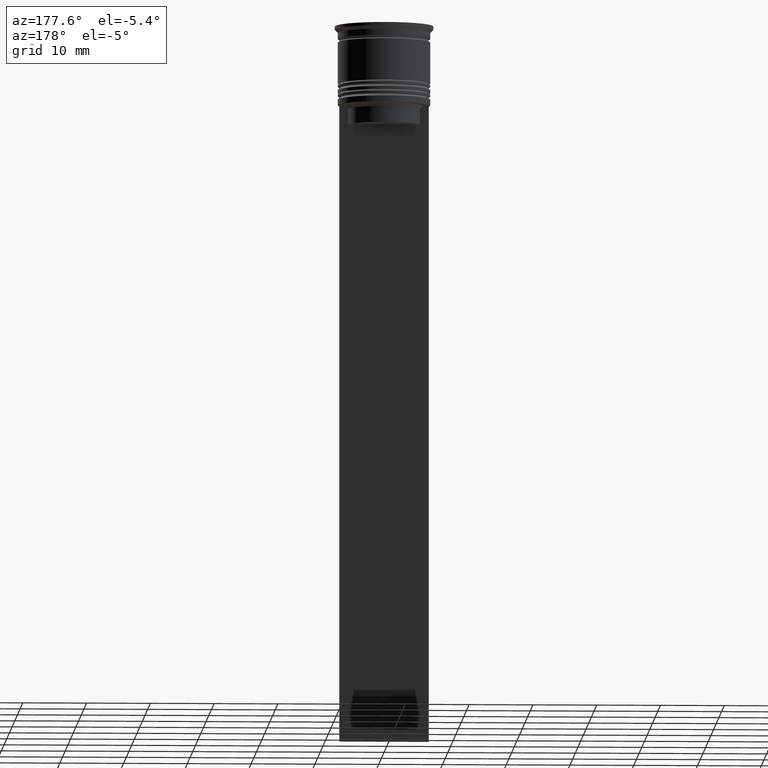
[diagram: clean part render]
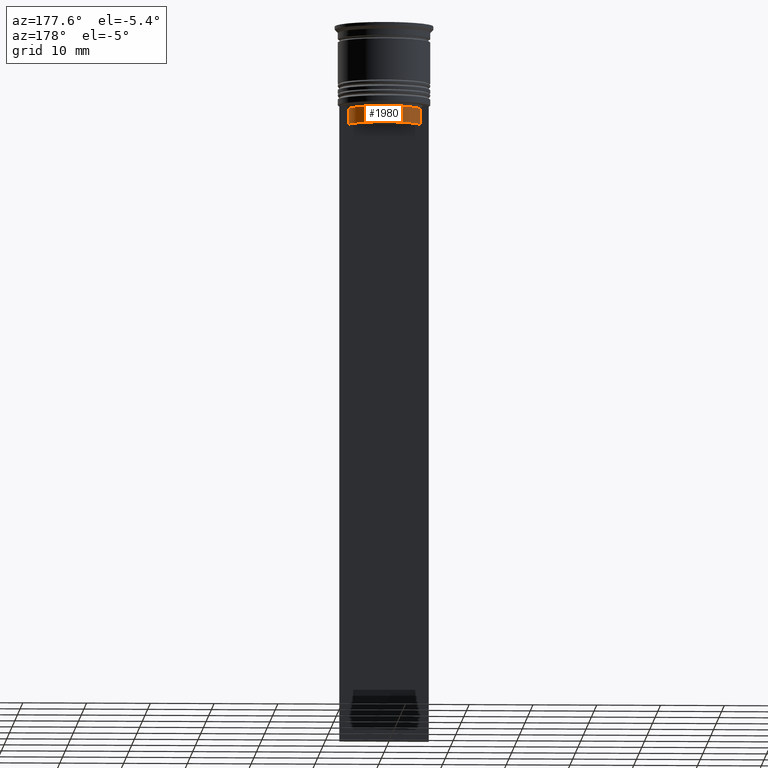
[diagram: same view with one face highlighted and labeled with its STEP entity id]
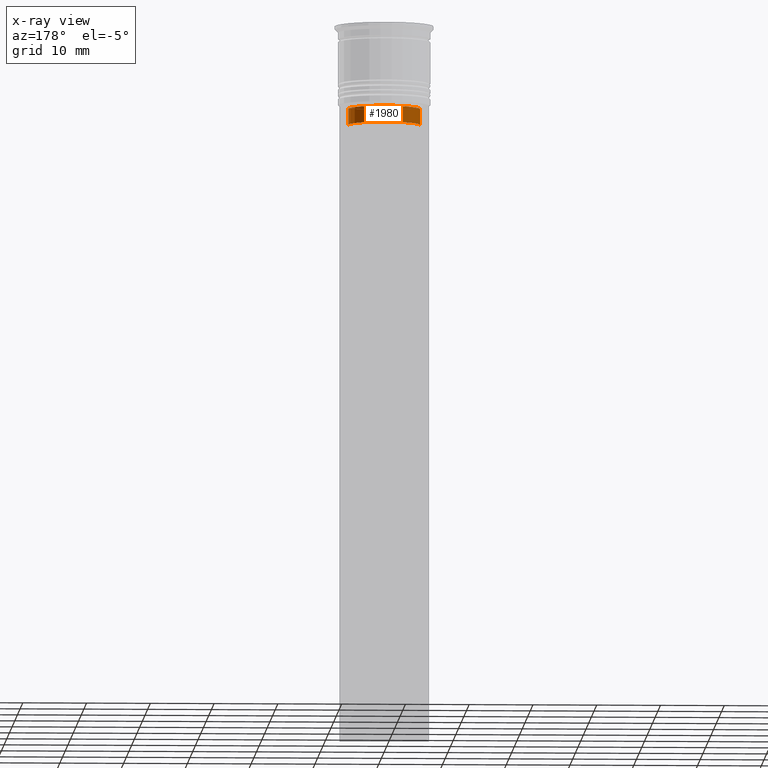
[diagram: x-ray of the same camera — body ghosted, the highlighted face saturated]
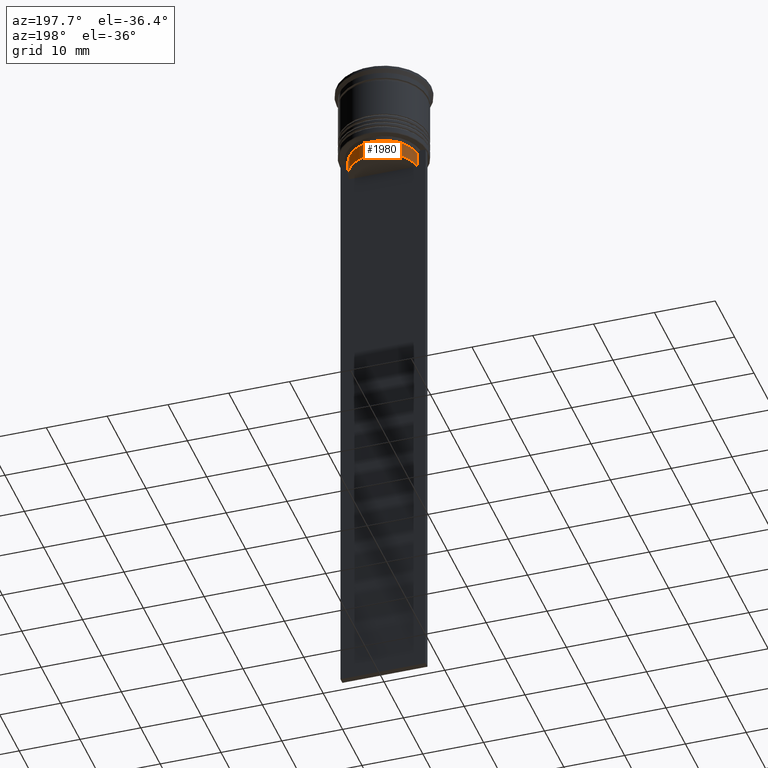
[diagram: same view with one face highlighted and labeled with its STEP entity id]
A machine part, auxiliary view. The second image highlights one B-rep face of the part: STEP entity #1980.
The next image is the same camera in x-ray: the body ghosted, the highlighted face saturated — about 0% of this face is hidden behind the body in this view.
A second angle (auxiliary view) of the same face is appended — the face is thin or edge-on in the first view.
In plain terms, the highlighted cylindrical surface (edge-blend (fillet) strip) has radius 5.65 mm, axis along (-0, -0, 1).
Its self-contained STEP definition (entity closure, byte-faithful):
#18 = EDGE_CURVE ( 'NONE', #59, #985, #1660, .T. ) ;
#59 = VERTEX_POINT ( 'NONE', #1250 ) ;
#175 = LINE ( 'NONE', #1613, #987 ) ;
#207 = LINE ( 'NONE', #1075, #1259 ) ;
#235 = CARTESIAN_POINT ( 'NONE',  ( 0.000000000000000000, 0.000000000000000000, -15.50000000000000000 ) ) ;
#280 = DIRECTION ( 'NONE',  ( 1.000000000000000000, 0.000000000000000000, 0.000000000000000000 ) ) ;
#526 = CARTESIAN_POINT ( 'NONE',  ( -5.627832620112292794, 0.4999999999999978351, -15.50000000000000000 ) ) ;
#646 = CARTESIAN_POINT ( 'NONE',  ( 5.627832620112292794, 0.4999999999999978351, -15.50000000000000000 ) ) ;
#697 = DIRECTION ( 'NONE',  ( 1.000000000000000000, 0.000000000000000000, 0.000000000000000000 ) ) ;
#731 = DIRECTION ( 'NONE',  ( -0.000000000000000000, -0.000000000000000000, 1.000000000000000000 ) ) ;
#852 = DIRECTION ( 'NONE',  ( -0.000000000000000000, -0.000000000000000000, 1.000000000000000000 ) ) ;
#877 = AXIS2_PLACEMENT_3D ( 'NONE', #2287, #852, #280 ) ;
#985 = VERTEX_POINT ( 'NONE', #1156 ) ;
#987 = VECTOR ( 'NONE', #731, 1000.000000000000000 ) ;
#1025 = AXIS2_PLACEMENT_3D ( 'NONE', #235, #2217, #1319 ) ;
#1075 = CARTESIAN_POINT ( 'NONE',  ( -5.627832620112292794, 0.4999999999999978351, 0.000000000000000000 ) ) ;
#1109 = CIRCLE ( 'NONE', #1025, 5.649999999999998579 ) ;
#1152 = ORIENTED_EDGE ( 'NONE', *, *, #2280, .F. ) ;
#1156 = CARTESIAN_POINT ( 'NONE',  ( -5.627832620112292794, 0.4999999999999978351, -13.00000000000000000 ) ) ;
#1250 = CARTESIAN_POINT ( 'NONE',  ( 5.627832620112292794, 0.4999999999999978351, -13.00000000000000000 ) ) ;
#1259 = VECTOR ( 'NONE', #1287, 1000.000000000000000 ) ;
#1287 = DIRECTION ( 'NONE',  ( 0.000000000000000000, 0.000000000000000000, -1.000000000000000000 ) ) ;
#1319 = DIRECTION ( 'NONE',  ( 1.000000000000000000, 0.000000000000000000, 0.000000000000000000 ) ) ;
#1338 = CYLINDRICAL_SURFACE ( 'NONE', #877, 5.649999999999998579 ) ;
#1524 = VERTEX_POINT ( 'NONE', #646 ) ;
#1613 = CARTESIAN_POINT ( 'NONE',  ( 5.627832620112292794, 0.4999999999999978351, 0.000000000000000000 ) ) ;
#1653 = ORIENTED_EDGE ( 'NONE', *, *, #18, .F. ) ;
#1660 = CIRCLE ( 'NONE', #2193, 5.649999999999997691 ) ;
#1749 = FACE_OUTER_BOUND ( 'NONE', #2128, .T. ) ;
#1793 = DIRECTION ( 'NONE',  ( -0.000000000000000000, -0.000000000000000000, 1.000000000000000000 ) ) ;
#1832 = EDGE_CURVE ( 'NONE', #1524, #2212, #1109, .T. ) ;
#1980 = ADVANCED_FACE ( 'NONE', ( #1749 ), #1338, .T. ) ;
#2087 = ORIENTED_EDGE ( 'NONE', *, *, #1832, .T. ) ;
#2128 = EDGE_LOOP ( 'NONE', ( #2258, #2087, #1152, #1653 ) ) ;
#2189 = EDGE_CURVE ( 'NONE', #1524, #59, #175, .T. ) ;
#2193 = AXIS2_PLACEMENT_3D ( 'NONE', #2325, #1793, #697 ) ;
#2212 = VERTEX_POINT ( 'NONE', #526 ) ;
#2217 = DIRECTION ( 'NONE',  ( -0.000000000000000000, -0.000000000000000000, 1.000000000000000000 ) ) ;
#2258 = ORIENTED_EDGE ( 'NONE', *, *, #2189, .F. ) ;
#2280 = EDGE_CURVE ( 'NONE', #985, #2212, #207, .T. ) ;
#2287 = CARTESIAN_POINT ( 'NONE',  ( 0.000000000000000000, 0.000000000000000000, 0.000000000000000000 ) ) ;
#2325 = CARTESIAN_POINT ( 'NONE',  ( 0.000000000000000000, 0.000000000000000000, -13.00000000000000000 ) ) ;